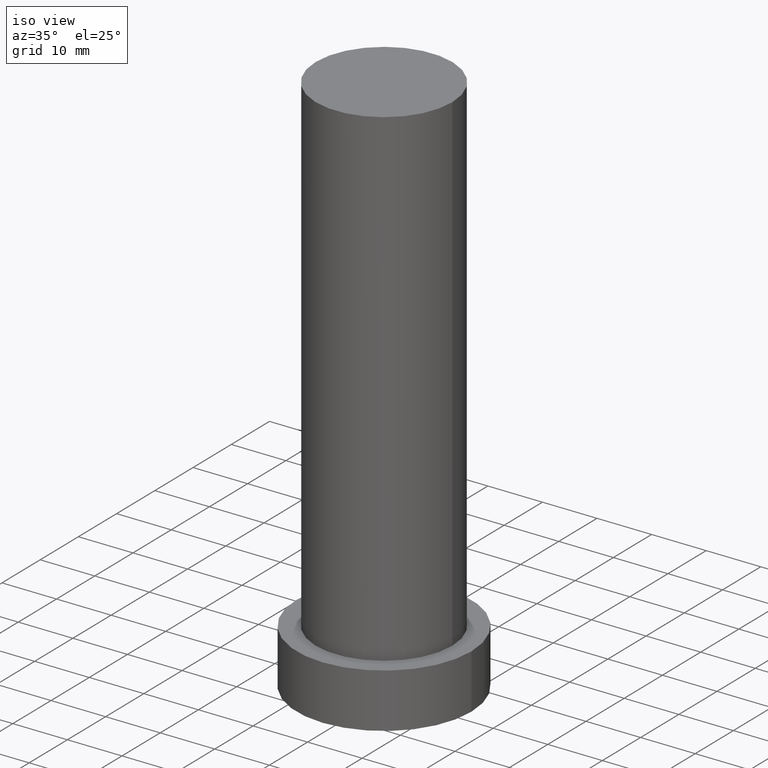
[diagram: clean part render]
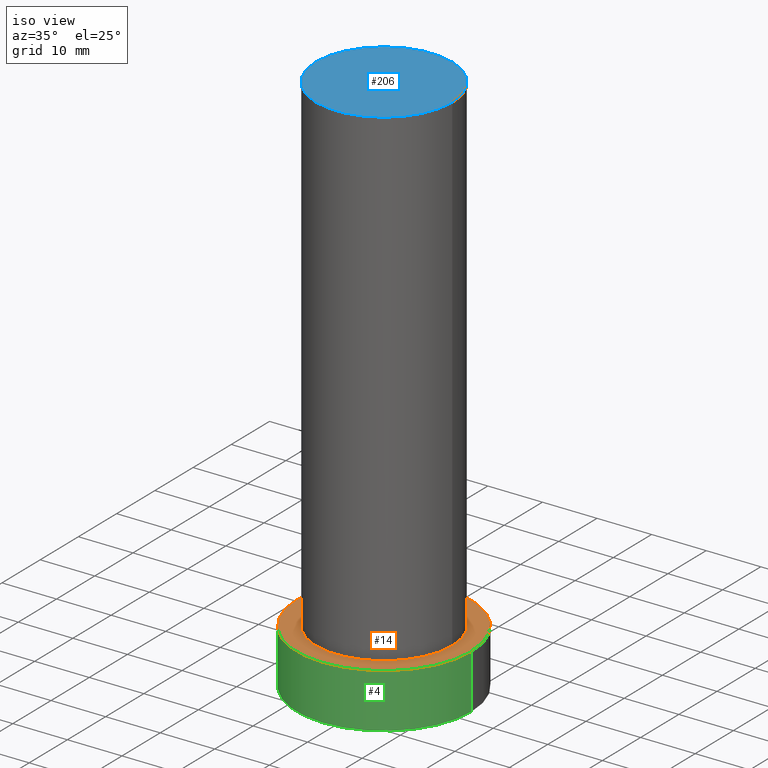
[diagram: same view with three faces highlighted in distinct colors, each labeled with its STEP entity id]
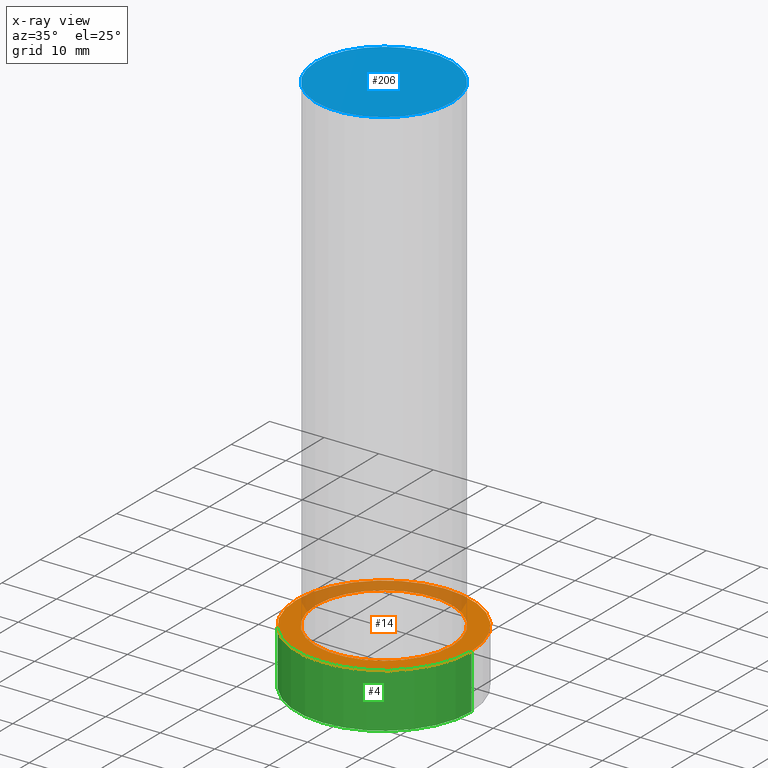
[diagram: x-ray of the same camera — body ghosted, the three highlighted faces saturated]
A machine part, iso view with three faces highlighted in distinct colors.
The next image is the same camera in x-ray (body ghosted, the three faces saturated) — at least one of them is partly hidden behind the body in this view.
Their STEP definitions:

[orange] entity #14 — the highlighted planar face has unit normal (0, 0, 1).
#6 = VERTEX_POINT ( 'NONE', #191 ) ;
#9 = CARTESIAN_POINT ( 'NONE',  ( 0.000000000000000000, 0.000000000000000000, 10.00000000000000000 ) ) ;
#14 = ADVANCED_FACE ( 'NONE', ( #236, #157 ), #58, .T. ) ;
#18 = CARTESIAN_POINT ( 'NONE',  ( 0.000000000000000000, 0.000000000000000000, 10.00000000000000000 ) ) ;
#23 = DIRECTION ( 'NONE',  ( 1.000000000000000000, 0.000000000000000000, 0.000000000000000000 ) ) ;
#32 = CARTESIAN_POINT ( 'NONE',  ( 0.000000000000000000, 0.000000000000000000, 10.00000000000000000 ) ) ;
#33 = EDGE_CURVE ( 'NONE', #6, #83, #131, .T. ) ;
#35 = CIRCLE ( 'NONE', #226, 12.50000000000000000 ) ;
#36 = CIRCLE ( 'NONE', #151, 16.00000000000000000 ) ;
#41 = DIRECTION ( 'NONE',  ( 1.000000000000000000, 0.000000000000000000, 0.000000000000000000 ) ) ;
#44 = CARTESIAN_POINT ( 'NONE',  ( 12.50000000000000000, 1.530808498934191127E-15, 10.00000000000000000 ) ) ;
#51 = DIRECTION ( 'NONE',  ( 0.000000000000000000, 0.000000000000000000, 1.000000000000000000 ) ) ;
#58 = PLANE ( 'NONE',  #232 ) ;
#82 = EDGE_CURVE ( 'NONE', #164, #185, #223, .T. ) ;
#83 = VERTEX_POINT ( 'NONE', #44 ) ;
#89 = DIRECTION ( 'NONE',  ( 1.000000000000000000, 0.000000000000000000, 0.000000000000000000 ) ) ;
#98 = AXIS2_PLACEMENT_3D ( 'NONE', #155, #128, #41 ) ;
#120 = ORIENTED_EDGE ( 'NONE', *, *, #201, .F. ) ;
#128 = DIRECTION ( 'NONE',  ( 0.000000000000000000, 0.000000000000000000, 1.000000000000000000 ) ) ;
#131 = CIRCLE ( 'NONE', #98, 12.50000000000000000 ) ;
#137 = EDGE_CURVE ( 'NONE', #185, #164, #36, .T. ) ;
#140 = EDGE_LOOP ( 'NONE', ( #163, #247 ) ) ;
#145 = CARTESIAN_POINT ( 'NONE',  ( -16.00000000000000000, 0.000000000000000000, 10.00000000000000000 ) ) ;
#150 = DIRECTION ( 'NONE',  ( 0.000000000000000000, 0.000000000000000000, 1.000000000000000000 ) ) ;
#151 = AXIS2_PLACEMENT_3D ( 'NONE', #9, #150, #89 ) ;
#155 = CARTESIAN_POINT ( 'NONE',  ( 0.000000000000000000, 0.000000000000000000, 10.00000000000000000 ) ) ;
#157 = FACE_OUTER_BOUND ( 'NONE', #140, .T. ) ;
#163 = ORIENTED_EDGE ( 'NONE', *, *, #82, .T. ) ;
#164 = VERTEX_POINT ( 'NONE', #145 ) ;
#176 = CARTESIAN_POINT ( 'NONE',  ( 0.000000000000000000, 0.000000000000000000, 10.00000000000000000 ) ) ;
#185 = VERTEX_POINT ( 'NONE', #205 ) ;
#191 = CARTESIAN_POINT ( 'NONE',  ( -12.50000000000000000, 0.000000000000000000, 10.00000000000000000 ) ) ;
#196 = DIRECTION ( 'NONE',  ( 1.000000000000000000, 0.000000000000000000, 0.000000000000000000 ) ) ;
#201 = EDGE_CURVE ( 'NONE', #83, #6, #35, .T. ) ;
#205 = CARTESIAN_POINT ( 'NONE',  ( 16.00000000000000000, 1.959434878635765131E-15, 10.00000000000000000 ) ) ;
#210 = DIRECTION ( 'NONE',  ( 0.000000000000000000, 0.000000000000000000, 1.000000000000000000 ) ) ;
#214 = EDGE_LOOP ( 'NONE', ( #220, #120 ) ) ;
#216 = DIRECTION ( 'NONE',  ( 0.000000000000000000, 0.000000000000000000, 1.000000000000000000 ) ) ;
#217 = AXIS2_PLACEMENT_3D ( 'NONE', #176, #216, #196 ) ;
#220 = ORIENTED_EDGE ( 'NONE', *, *, #33, .F. ) ;
#223 = CIRCLE ( 'NONE', #217, 16.00000000000000000 ) ;
#226 = AXIS2_PLACEMENT_3D ( 'NONE', #32, #51, #23 ) ;
#232 = AXIS2_PLACEMENT_3D ( 'NONE', #18, #210, #252 ) ;
#236 = FACE_BOUND ( 'NONE', #214, .T. ) ;
#247 = ORIENTED_EDGE ( 'NONE', *, *, #137, .T. ) ;
#252 = DIRECTION ( 'NONE',  ( 1.000000000000000000, 0.000000000000000000, -0.000000000000000000 ) ) ;

[blue] entity #206 — the highlighted planar face has unit normal (0, 0, 1).
#1 = CARTESIAN_POINT ( 'NONE',  ( -12.50000000000000000, 0.000000000000000000, 99.99999999999998579 ) ) ;
#5 = VERTEX_POINT ( 'NONE', #40 ) ;
#7 = PLANE ( 'NONE',  #16 ) ;
#16 = AXIS2_PLACEMENT_3D ( 'NONE', #123, #91, #169 ) ;
#26 = VERTEX_POINT ( 'NONE', #1 ) ;
#40 = CARTESIAN_POINT ( 'NONE',  ( 12.50000000000000000, 1.530808498934191127E-15, 99.99999999999998579 ) ) ;
#46 = EDGE_CURVE ( 'NONE', #26, #5, #80, .T. ) ;
#54 = AXIS2_PLACEMENT_3D ( 'NONE', #171, #68, #107 ) ;
#57 = DIRECTION ( 'NONE',  ( 0.000000000000000000, 0.000000000000000000, 1.000000000000000000 ) ) ;
#68 = DIRECTION ( 'NONE',  ( 0.000000000000000000, 0.000000000000000000, 1.000000000000000000 ) ) ;
#80 = CIRCLE ( 'NONE', #227, 12.50000000000000000 ) ;
#91 = DIRECTION ( 'NONE',  ( 0.000000000000000000, 0.000000000000000000, 1.000000000000000000 ) ) ;
#106 = FACE_OUTER_BOUND ( 'NONE', #182, .T. ) ;
#107 = DIRECTION ( 'NONE',  ( 1.000000000000000000, 0.000000000000000000, 0.000000000000000000 ) ) ;
#119 = ORIENTED_EDGE ( 'NONE', *, *, #46, .T. ) ;
#123 = CARTESIAN_POINT ( 'NONE',  ( 0.000000000000000000, 0.000000000000000000, 99.99999999999998579 ) ) ;
#169 = DIRECTION ( 'NONE',  ( 1.000000000000000000, 0.000000000000000000, -0.000000000000000000 ) ) ;
#171 = CARTESIAN_POINT ( 'NONE',  ( 0.000000000000000000, 0.000000000000000000, 99.99999999999998579 ) ) ;
#172 = CIRCLE ( 'NONE', #54, 12.50000000000000000 ) ;
#182 = EDGE_LOOP ( 'NONE', ( #119, #186 ) ) ;
#186 = ORIENTED_EDGE ( 'NONE', *, *, #221, .T. ) ;
#206 = ADVANCED_FACE ( 'NONE', ( #106 ), #7, .T. ) ;
#209 = DIRECTION ( 'NONE',  ( 1.000000000000000000, 0.000000000000000000, 0.000000000000000000 ) ) ;
#221 = EDGE_CURVE ( 'NONE', #5, #26, #172, .T. ) ;
#227 = AXIS2_PLACEMENT_3D ( 'NONE', #238, #57, #209 ) ;
#238 = CARTESIAN_POINT ( 'NONE',  ( 0.000000000000000000, 0.000000000000000000, 99.99999999999998579 ) ) ;

[green] entity #4 — the highlighted cylindrical surface (partial cylindrical patch) has radius 16 mm, axis along (-0, -0, -1).
#4 = ADVANCED_FACE ( 'NONE', ( #96 ), #15, .T. ) ;
#15 = CYLINDRICAL_SURFACE ( 'NONE', #93, 16.00000000000000000 ) ;
#21 = VERTEX_POINT ( 'NONE', #212 ) ;
#39 = DIRECTION ( 'NONE',  ( 1.000000000000000000, 0.000000000000000000, 0.000000000000000000 ) ) ;
#42 = DIRECTION ( 'NONE',  ( -0.000000000000000000, -0.000000000000000000, -1.000000000000000000 ) ) ;
#50 = ORIENTED_EDGE ( 'NONE', *, *, #254, .T. ) ;
#53 = CARTESIAN_POINT ( 'NONE',  ( -16.00000000000000000, 0.000000000000000000, 10.00000000000000000 ) ) ;
#63 = EDGE_LOOP ( 'NONE', ( #74, #165, #218, #50 ) ) ;
#64 = LINE ( 'NONE', #125, #200 ) ;
#74 = ORIENTED_EDGE ( 'NONE', *, *, #154, .F. ) ;
#75 = DIRECTION ( 'NONE',  ( -1.000000000000000000, 0.000000000000000000, 0.000000000000000000 ) ) ;
#82 = EDGE_CURVE ( 'NONE', #164, #185, #223, .T. ) ;
#93 = AXIS2_PLACEMENT_3D ( 'NONE', #193, #42, #75 ) ;
#94 = DIRECTION ( 'NONE',  ( 0.000000000000000000, 0.000000000000000000, 1.000000000000000000 ) ) ;
#96 = FACE_OUTER_BOUND ( 'NONE', #63, .T. ) ;
#125 = CARTESIAN_POINT ( 'NONE',  ( 16.00000000000000000, 1.959434878635765131E-15, 10.00000000000000000 ) ) ;
#145 = CARTESIAN_POINT ( 'NONE',  ( -16.00000000000000000, 0.000000000000000000, 10.00000000000000000 ) ) ;
#147 = EDGE_CURVE ( 'NONE', #164, #224, #203, .T. ) ;
#154 = EDGE_CURVE ( 'NONE', #185, #21, #64, .T. ) ;
#164 = VERTEX_POINT ( 'NONE', #145 ) ;
#165 = ORIENTED_EDGE ( 'NONE', *, *, #82, .F. ) ;
#167 = DIRECTION ( 'NONE',  ( -0.000000000000000000, -0.000000000000000000, -1.000000000000000000 ) ) ;
#176 = CARTESIAN_POINT ( 'NONE',  ( 0.000000000000000000, 0.000000000000000000, 10.00000000000000000 ) ) ;
#185 = VERTEX_POINT ( 'NONE', #205 ) ;
#193 = CARTESIAN_POINT ( 'NONE',  ( 0.000000000000000000, 0.000000000000000000, 10.00000000000000000 ) ) ;
#195 = CIRCLE ( 'NONE', #204, 16.00000000000000000 ) ;
#196 = DIRECTION ( 'NONE',  ( 1.000000000000000000, 0.000000000000000000, 0.000000000000000000 ) ) ;
#200 = VECTOR ( 'NONE', #250, 1000.000000000000000 ) ;
#203 = LINE ( 'NONE', #53, #253 ) ;
#204 = AXIS2_PLACEMENT_3D ( 'NONE', #231, #94, #39 ) ;
#205 = CARTESIAN_POINT ( 'NONE',  ( 16.00000000000000000, 1.959434878635765131E-15, 10.00000000000000000 ) ) ;
#208 = CARTESIAN_POINT ( 'NONE',  ( -16.00000000000000000, 0.000000000000000000, 0.000000000000000000 ) ) ;
#212 = CARTESIAN_POINT ( 'NONE',  ( 16.00000000000000000, 1.959434878635765131E-15, 0.000000000000000000 ) ) ;
#216 = DIRECTION ( 'NONE',  ( 0.000000000000000000, 0.000000000000000000, 1.000000000000000000 ) ) ;
#217 = AXIS2_PLACEMENT_3D ( 'NONE', #176, #216, #196 ) ;
#218 = ORIENTED_EDGE ( 'NONE', *, *, #147, .T. ) ;
#223 = CIRCLE ( 'NONE', #217, 16.00000000000000000 ) ;
#224 = VERTEX_POINT ( 'NONE', #208 ) ;
#231 = CARTESIAN_POINT ( 'NONE',  ( 0.000000000000000000, 0.000000000000000000, 0.000000000000000000 ) ) ;
#250 = DIRECTION ( 'NONE',  ( -0.000000000000000000, -0.000000000000000000, -1.000000000000000000 ) ) ;
#253 = VECTOR ( 'NONE', #167, 1000.000000000000000 ) ;
#254 = EDGE_CURVE ( 'NONE', #224, #21, #195, .T. ) ;